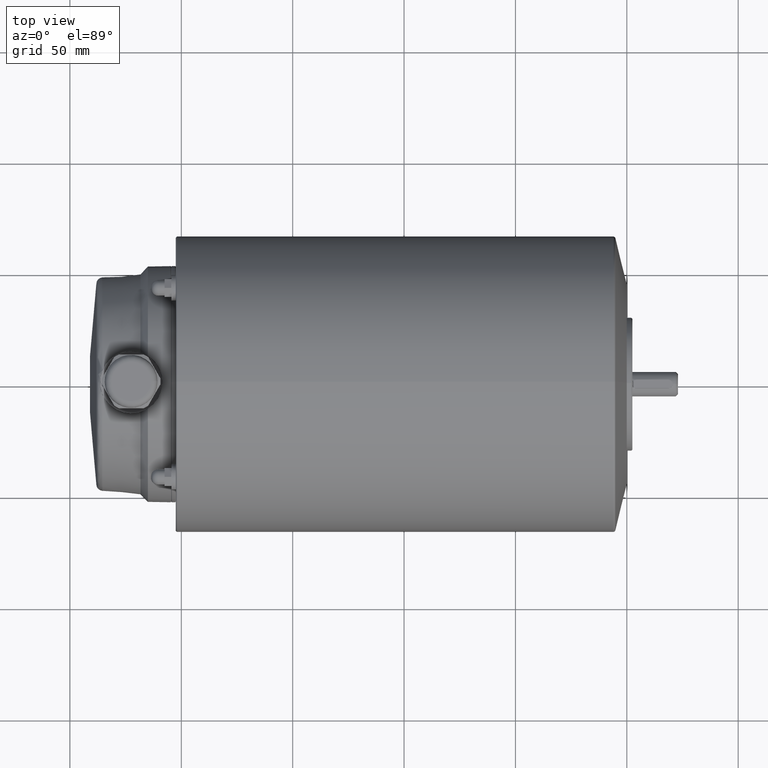
[diagram: clean part render]
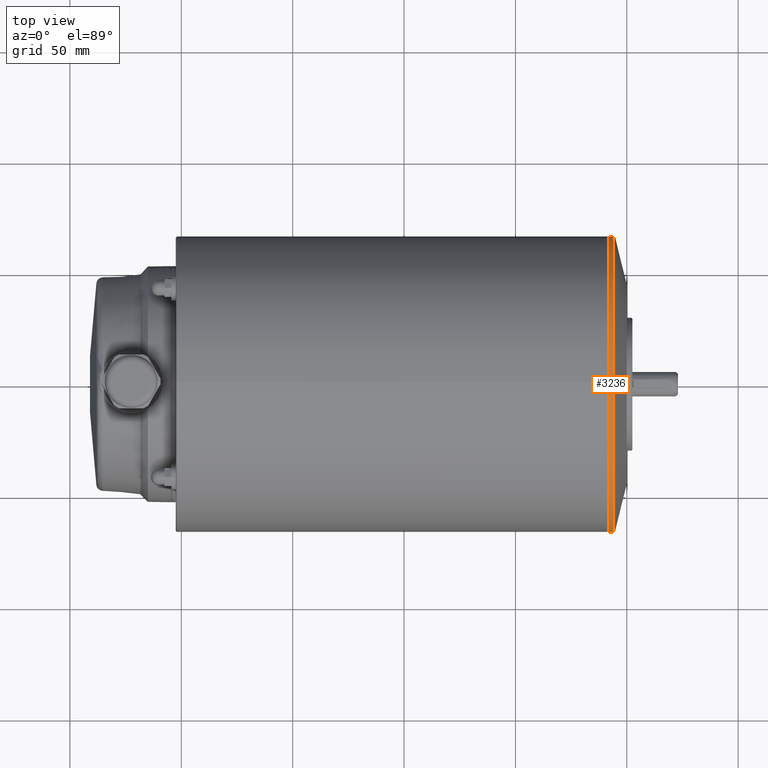
[diagram: same view with one face highlighted and labeled with its STEP entity id]
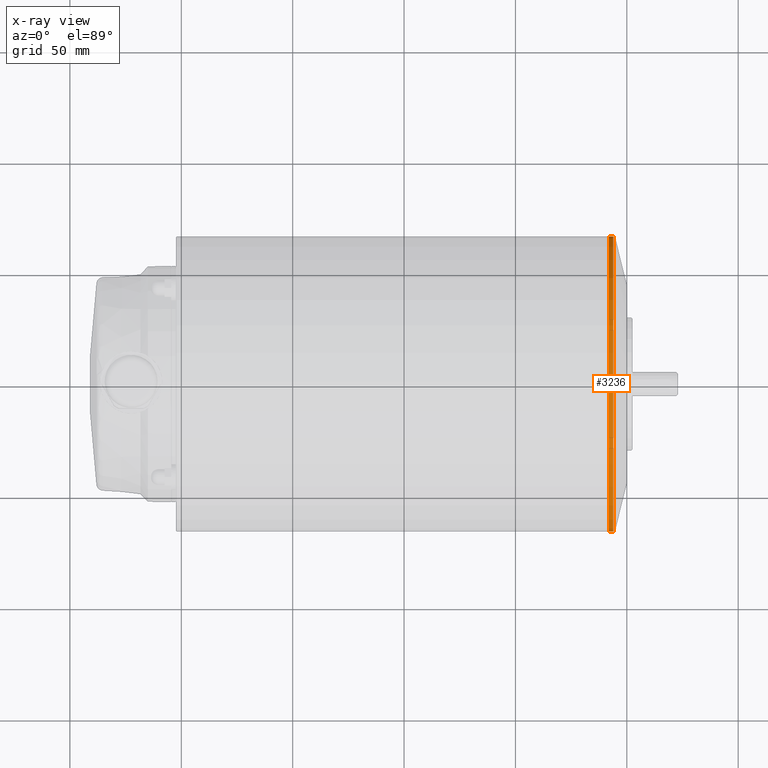
[diagram: x-ray of the same camera — body ghosted, the highlighted face saturated]
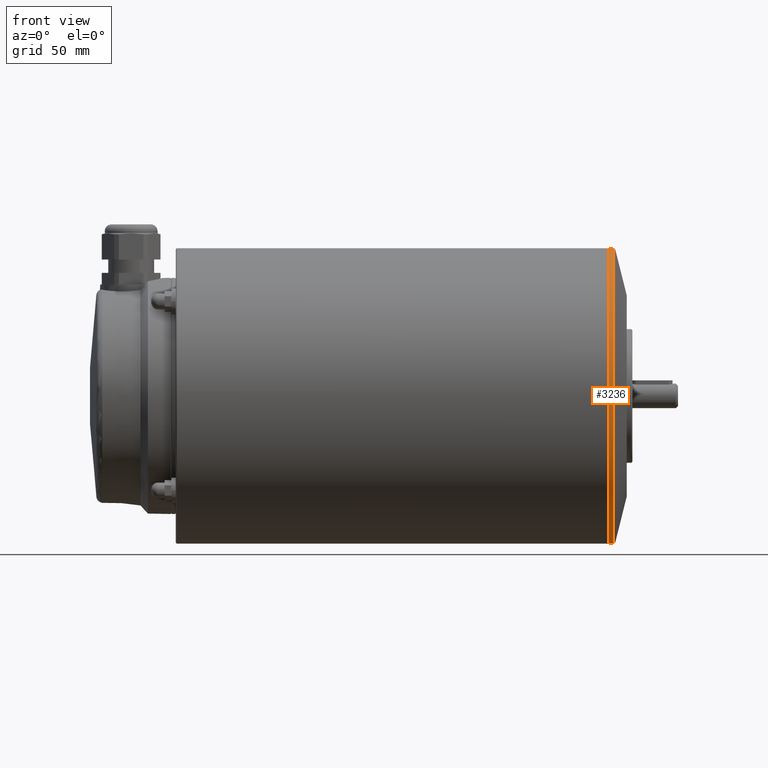
[diagram: same view with one face highlighted and labeled with its STEP entity id]
A machine part, top view. The second image highlights one B-rep face of the part: STEP entity #3236.
The next image is the same camera in x-ray: the body ghosted, the highlighted face saturated — about 0% of this face is hidden behind the body in this view.
A second angle (front view) of the same face is appended — the face is thin or edge-on in the first view.
In plain terms, the highlighted cylindrical surface (bore or boss wall) has radius 66.3 mm, axis along (-1, 0, 0).
Its self-contained STEP definition (entity closure, byte-faithful):
#500=ORIENTED_EDGE('',*,*,#1043,.T.);
#501=ORIENTED_EDGE('',*,*,#1042,.F.);
#1042=EDGE_CURVE('',#1313,#1313,#1495,.T.);
#1043=EDGE_CURVE('',#1314,#1314,#1496,.T.);
#1313=VERTEX_POINT('',#4532);
#1314=VERTEX_POINT('',#4535);
#1495=CIRCLE('',#3438,66.3);
#1496=CIRCLE('',#3440,66.3);
#1608=EDGE_LOOP('',(#500));
#1609=EDGE_LOOP('',(#501));
#1851=FACE_BOUND('',#1608,.T.);
#1852=FACE_BOUND('',#1609,.T.);
#2084=CYLINDRICAL_SURFACE('',#3439,66.3);
#3236=ADVANCED_FACE('',(#1851,#1852),#2084,.T.);
#3438=AXIS2_PLACEMENT_3D('',#4531,#3808,#3809);
#3439=AXIS2_PLACEMENT_3D('',#4533,#3810,#3811);
#3440=AXIS2_PLACEMENT_3D('',#4534,#3812,#3813);
#3808=DIRECTION('',(-1.,0.,0.));
#3809=DIRECTION('',(0.,0.,1.));
#3810=DIRECTION('',(-1.,0.,0.));
#3811=DIRECTION('',(0.,0.,1.));
#3812=DIRECTION('',(-1.,0.,0.));
#3813=DIRECTION('',(0.,0.,1.));
#4531=CARTESIAN_POINT('',(-7.99000000000003,0.,0.));
#4532=CARTESIAN_POINT('',(-7.99000000000003,0.,66.3));
#4533=CARTESIAN_POINT('',(-241.,0.,0.));
#4534=CARTESIAN_POINT('',(-6.09197208706649,0.,0.));
#4535=CARTESIAN_POINT('',(-6.09197208706649,0.,66.3));